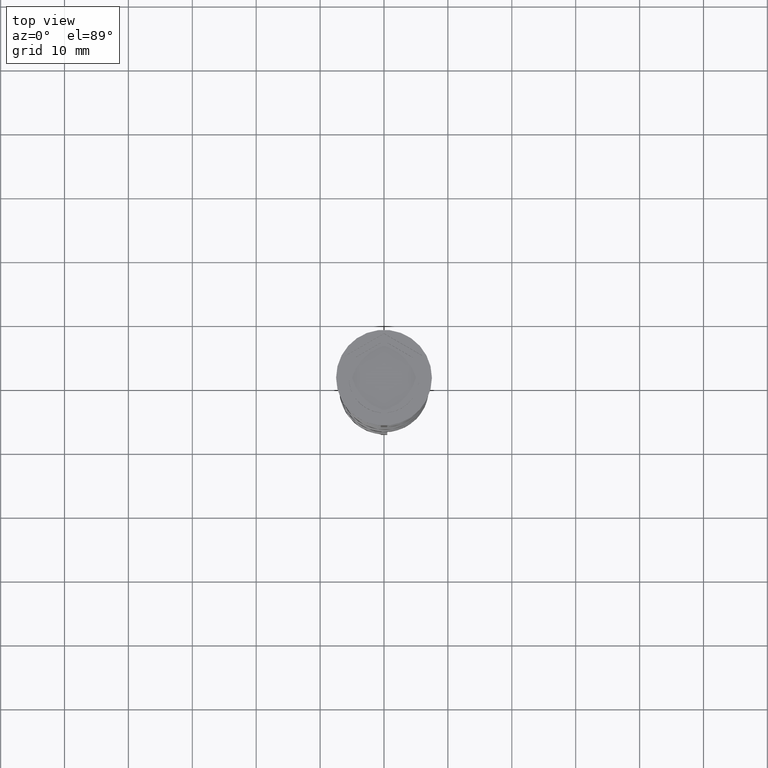
[diagram: clean part render]
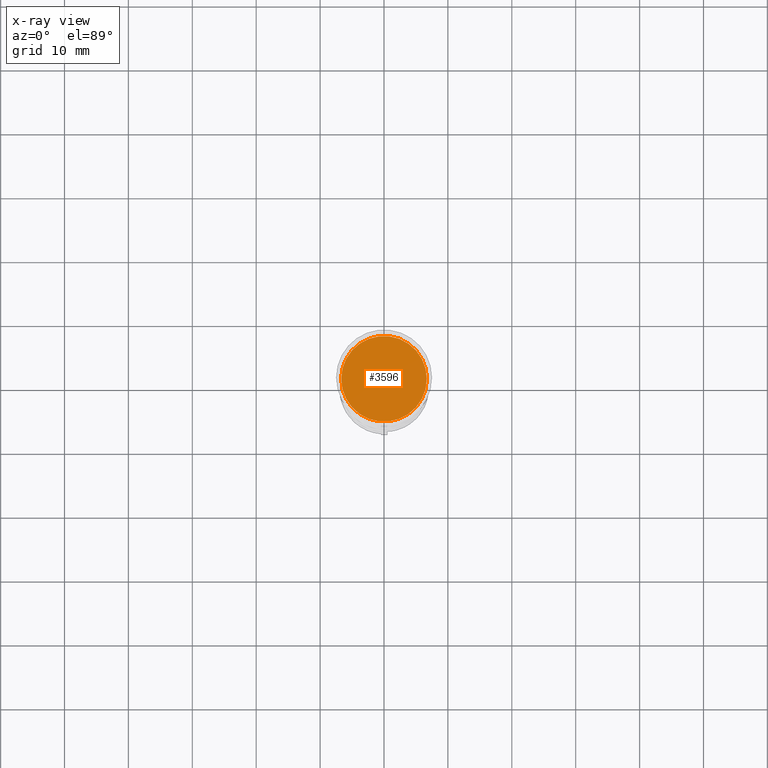
[diagram: x-ray — body ghosted, one internal face saturated and labeled with its STEP entity id]
A machine part, top view, then the same camera in x-ray: the body is ghosted and one INTERNAL B-rep face — a face not visible from any outside direction — is saturated and labeled: STEP entity #3596.
In plain terms, the highlighted planar face has unit normal (0, 0, -1).
Its self-contained STEP definition (entity closure, byte-faithful):
#415 = EDGE_LOOP ( 'NONE', ( #879, #3055 ) ) ;
#505 = DIRECTION ( 'NONE',  ( -0.000000000000000000, -0.000000000000000000, 1.000000000000000000 ) ) ;
#712 = VERTEX_POINT ( 'NONE', #2322 ) ;
#879 = ORIENTED_EDGE ( 'NONE', *, *, #3437, .T. ) ;
#1128 = EDGE_CURVE ( 'NONE', #2827, #712, #2679, .T. ) ;
#1393 = DIRECTION ( 'NONE',  ( -0.000000000000000000, -0.000000000000000000, 1.000000000000000000 ) ) ;
#1454 = FACE_OUTER_BOUND ( 'NONE', #415, .T. ) ;
#1538 = CARTESIAN_POINT ( 'NONE',  ( 0.000000000000000000, 0.000000000000000000, -10.50000000000000178 ) ) ;
#1616 = CARTESIAN_POINT ( 'NONE',  ( 0.000000000000000000, 0.000000000000000000, -10.50000000000000178 ) ) ;
#1653 = AXIS2_PLACEMENT_3D ( 'NONE', #3413, #3335, #3138 ) ;
#2248 = PLANE ( 'NONE',  #1653 ) ;
#2322 = CARTESIAN_POINT ( 'NONE',  ( -6.700000000000001066, 0.000000000000000000, -10.50000000000000178 ) ) ;
#2679 = CIRCLE ( 'NONE', #3382, 6.700000000000001066 ) ;
#2698 = CIRCLE ( 'NONE', #2875, 6.700000000000001066 ) ;
#2827 = VERTEX_POINT ( 'NONE', #2874 ) ;
#2874 = CARTESIAN_POINT ( 'NONE',  ( 6.700000000000001066, 8.388830574159370862E-16, -10.50000000000000178 ) ) ;
#2875 = AXIS2_PLACEMENT_3D ( 'NONE', #1538, #505, #3282 ) ;
#2987 = DIRECTION ( 'NONE',  ( -1.000000000000000000, 0.000000000000000000, 0.000000000000000000 ) ) ;
#3055 = ORIENTED_EDGE ( 'NONE', *, *, #1128, .T. ) ;
#3138 = DIRECTION ( 'NONE',  ( -1.000000000000000000, 0.000000000000000000, -0.000000000000000000 ) ) ;
#3282 = DIRECTION ( 'NONE',  ( -1.000000000000000000, 0.000000000000000000, 0.000000000000000000 ) ) ;
#3335 = DIRECTION ( 'NONE',  ( 0.000000000000000000, 0.000000000000000000, -1.000000000000000000 ) ) ;
#3382 = AXIS2_PLACEMENT_3D ( 'NONE', #1616, #1393, #2987 ) ;
#3413 = CARTESIAN_POINT ( 'NONE',  ( 0.000000000000000000, 0.000000000000000000, -10.50000000000000178 ) ) ;
#3437 = EDGE_CURVE ( 'NONE', #712, #2827, #2698, .T. ) ;
#3596 = ADVANCED_FACE ( 'NONE', ( #1454 ), #2248, .F. ) ;